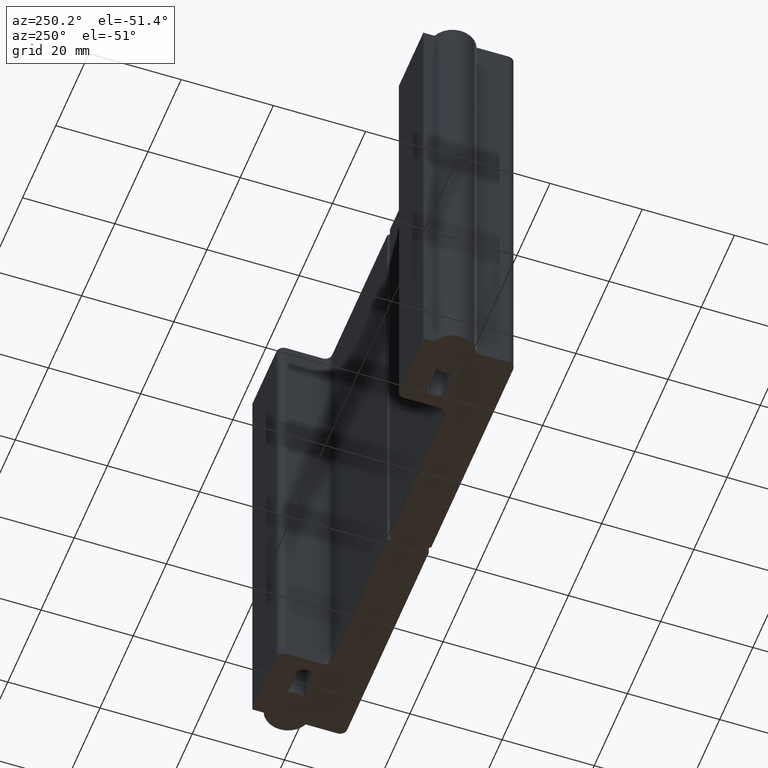
[diagram: clean part render]
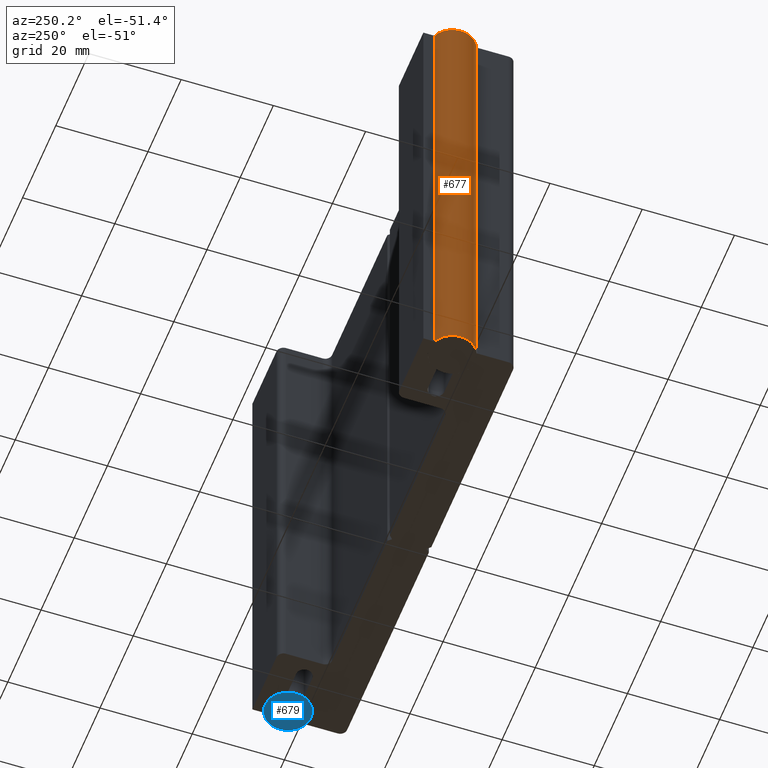
[diagram: same view with the hole feature highlighted: cylindrical wall and planar end face, labeled with their STEP entity ids]
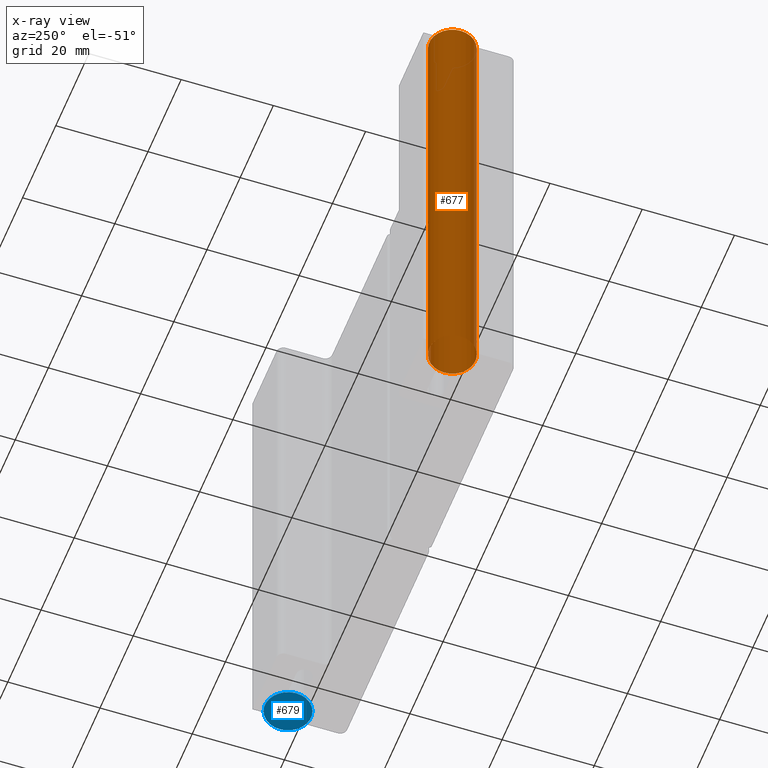
[diagram: x-ray of the same camera — body ghosted, the hole faces saturated]
A machine part, auxiliary view. The highlighted faces form one hole feature of diameter 10 mm: the cylindrical wall (entity #677, orange) and its adjacent planar end face (entity #679, blue) — they share a circular edge in the B-rep.
The next image is the same camera in x-ray (body ghosted, the hole faces saturated) — the bore reads through the body.
Wall:
#55=FACE_OUTER_BOUND('',#92,.T.);
#92=EDGE_LOOP('',(#466,#467,#468,#469));
#129=LINE('',#1046,#202);
#202=VECTOR('',#837,5.);
#275=CIRCLE('',#763,5.);
#276=CIRCLE('',#764,5.);
#301=VERTEX_POINT('',#1043);
#302=VERTEX_POINT('',#1045);
#367=EDGE_CURVE('',#301,#301,#275,.T.);
#368=EDGE_CURVE('',#301,#302,#129,.T.);
#369=EDGE_CURVE('',#302,#302,#276,.T.);
#466=ORIENTED_EDGE('',*,*,#367,.F.);
#467=ORIENTED_EDGE('',*,*,#368,.T.);
#468=ORIENTED_EDGE('',*,*,#369,.F.);
#469=ORIENTED_EDGE('',*,*,#368,.F.);
#664=CYLINDRICAL_SURFACE('',#762,5.);
#677=ADVANCED_FACE('',(#55),#664,.T.);
#762=AXIS2_PLACEMENT_3D('',#1042,#833,#834);
#763=AXIS2_PLACEMENT_3D('',#1044,#835,#836);
#764=AXIS2_PLACEMENT_3D('',#1047,#838,#839);
#833=DIRECTION('center_axis',(0.,0.,1.));
#834=DIRECTION('ref_axis',(-1.,0.,0.));
#835=DIRECTION('center_axis',(0.,0.,1.));
#836=DIRECTION('ref_axis',(-1.,0.,0.));
#837=DIRECTION('',(0.,0.,-1.));
#838=DIRECTION('center_axis',(0.,0.,-1.));
#839=DIRECTION('ref_axis',(-1.,0.,0.));
#1042=CARTESIAN_POINT('Origin',(0.,0.,0.));
#1043=CARTESIAN_POINT('',(5.,6.12323399573677E-16,100.));
#1044=CARTESIAN_POINT('Origin',(0.,0.,100.));
#1045=CARTESIAN_POINT('',(5.,6.12323399573677E-16,0.));
#1046=CARTESIAN_POINT('',(5.,6.12323399573677E-16,0.));
#1047=CARTESIAN_POINT('Origin',(0.,0.,0.));
End face:
#32=PLANE('',#766);
#57=FACE_OUTER_BOUND('',#94,.T.);
#94=EDGE_LOOP('',(#471));
#276=CIRCLE('',#764,5.);
#302=VERTEX_POINT('',#1045);
#369=EDGE_CURVE('',#302,#302,#276,.T.);
#471=ORIENTED_EDGE('',*,*,#369,.T.);
#679=ADVANCED_FACE('',(#57),#32,.F.);
#764=AXIS2_PLACEMENT_3D('',#1047,#838,#839);
#766=AXIS2_PLACEMENT_3D('',#1049,#842,#843);
#838=DIRECTION('center_axis',(0.,0.,-1.));
#839=DIRECTION('ref_axis',(-1.,0.,0.));
#842=DIRECTION('center_axis',(0.,0.,1.));
#843=DIRECTION('ref_axis',(1.,0.,0.));
#1045=CARTESIAN_POINT('',(5.,6.12323399573677E-16,0.));
#1047=CARTESIAN_POINT('Origin',(0.,0.,0.));
#1049=CARTESIAN_POINT('Origin',(-2.36064120735333E-16,9.25185853854297E-17,
0.));